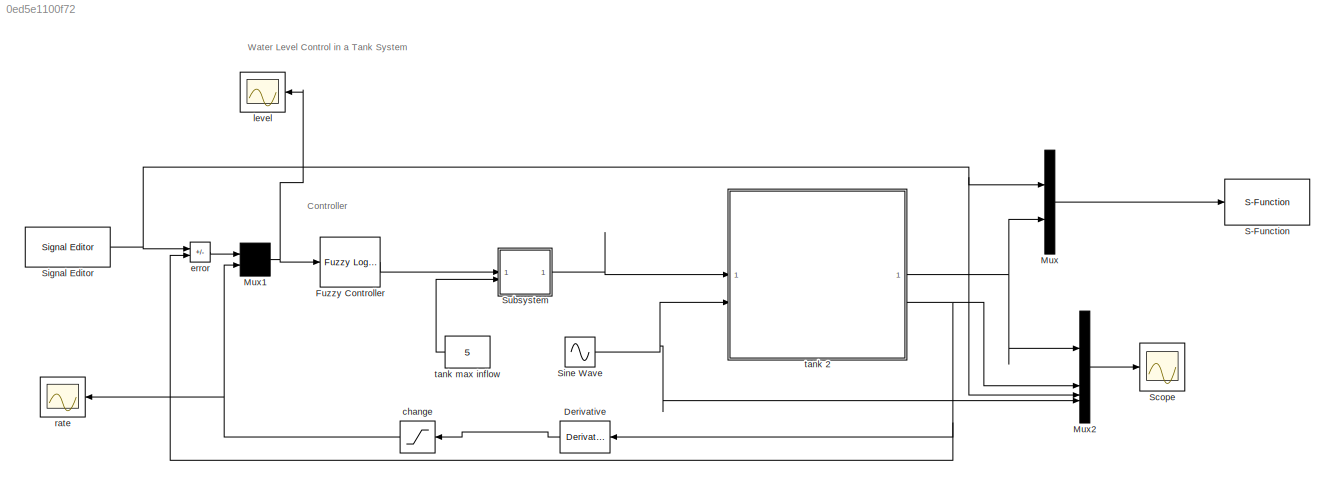
MODEL slx_0ed5e1100f72
KIND model
CONFIG AbsTol = 1e-6
CONFIG EnableMultiTasking = off
CONFIG FixedStep = auto
CONFIG MaxStep = 0.2
CONFIG MinStep = auto
CONFIG PreLoadFcn = tank=readfis('Q');
CONFIG RelTol = 1e-3
CONFIG SampleTimeConstraint = Unconstrained
CONFIG SolverName = ode45
CONFIG StartTime = 0
CONFIG StopTime = 100
BLOCK [Derivative] Derivative
BLOCK [Reference] Fuzzy Controller   REF=fuzblock/Fuzzy Logic   (lib defined in mdl_858b3b3e7478)
Controller 
with Ruleviewer
  SourceBlock = fuzblock/Fuzzy Logic \nController \nwith Ruleviewer
  SourceType = Fuzzy Inference System
BLOCK [Mux] Mux
  DisplayOption = bar
  Inputs = 2
BLOCK [Mux] Mux1
  Inputs = 2
BLOCK [Mux] Mux2
  DisplayOption = bar
BLOCK [S-Function] S-Function
  Commented = on
  EnableBusSupport = off
  FunctionName = animtank_puc
  Parameters = 1
  SFcnIsStateOwnerBlock = off
  SFunctionDeploymentMode = off
BLOCK [Scope] Scope
  ActiveDisplayYMaximum = 2.99994802333179
  ActiveDisplayYMinimum = -1.4222148185755841
  Floating = off
  GraphicalSettings = {"AxesScalingProperties":{"AlignXAxis":"Center","AlignYAxis":"Center","AutoScaleXAxisLimits":false,"AxesScaling":"Manual","AxesScalingNumUpdates":10,"ExpandOnly":true,"ScaleAxesLimitsAtStop":false,"XAxisDataRange":100,"YAxisDataRange":80},"DisplayProperties":{"ColorOrder":["auto","auto","auto","auto","auto","auto","auto","auto","auto","auto","auto","auto","auto","auto","auto","auto","auto","auto",...<+2355ch>
  MultipleDisplayCache = [{"MaxYLimMag":1.675,"MaxYLimReal":2.99994802333179,"MinYLimMag":0,"MinYLimReal":-1.4222148185755841,"PlotAsMagnitudePhase":false,"ShowGrid":true,"ShowLegend":true,"Title":"%<SignalLabel>","YLabel":""}]
  NumInputPorts = 1
  ScopeFrameLocation = window
  ShowLegend = on
  WasSavedAsWebScope = on
  WindowPosition = [900.000000,215.000000,733.000000,586.000000,]
BLOCK [Reference] Signal Editor  REF=SignalEditorBlockLib/Signal Editor
  SourceBlock = SignalEditorBlockLib/Signal Editor
  SourceType = SignalEditor
  UserDataPersistent = on
BLOCK [Sin] Sine Wave
  Amplitude = 0.1
  Bias = 0.2
  Frequency = 0.3
  SampleTime = 0
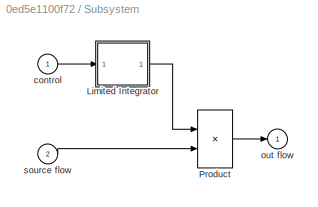
BLOCK [SubSystem] Subsystem
  ShowPortLabels = none
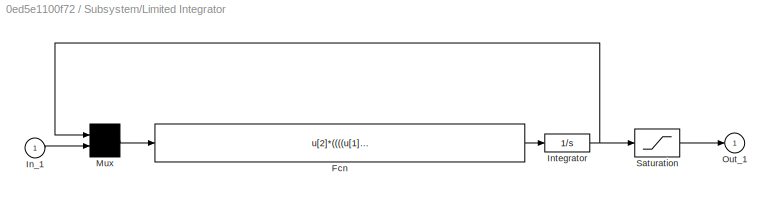
BLOCK [SubSystem] Subsystem/Limited Integrator
  ShowPortLabels = none
BLOCK [Fcn] Subsystem/Limited Integrator/Fcn
  Expr = u[2]*((((u[1]>lb)+(u[2]>=0))>0) * (((u[1]<ub)+(u[2]<=0))>0))
BLOCK [Inport] Subsystem/Limited Integrator/In_1
BLOCK [Integrator] Subsystem/Limited Integrator/Integrator
  InitialCondition = xi
BLOCK [Mux] Subsystem/Limited Integrator/Mux
  Inputs = 2
BLOCK [Outport] Subsystem/Limited Integrator/Out_1
  InitialOutput = 0
BLOCK [Saturate] Subsystem/Limited Integrator/Saturation
  LowerLimit = lb
  UpperLimit = ub
BLOCK [Product] Subsystem/Product
  InputSameDT = on
  OutDataTypeStr = Inherit: Same as first input
  RndMeth = Zero
  SaturateOnIntegerOverflow = on
BLOCK [Inport] Subsystem/control
BLOCK [Outport] Subsystem/out flow
  InitialOutput = 0
BLOCK [Inport] Subsystem/source flow
  Port = 2
BLOCK [Saturate] change
  LowerLimit = -5
  UpperLimit = 5
BLOCK [Sum] error
  IconShape = rectangular
  InputSameDT = on
  Inputs = +-
  OutDataTypeStr = Inherit: Same as first input
  SaturateOnIntegerOverflow = on
BLOCK [Scope] level
  ActiveDisplayYMaximum = 1
  ActiveDisplayYMinimum = -1
  DataLoggingVariableName = ScopeData2
  Floating = off
  GraphicalSettings = {"Style":{"BackgroundColor":[0.12941176470588237,0.12941176470588237,0.12941176470588237],"AxesColor":[0.07058823529411765,0.07058823529411765,0.07058823529411765],"LabelsColor":[0.8509803921568627,0.8509803921568627,0.8509803921568627],"PreserveColors":false,"Visible":[true],"LineStyle":["-"],"LineWidth":[1.5],"BarWidth":[0.9],"LineColor":["auto"],"LineFaceAlpha":[1],"LineEdgeAlpha":[1],"Marker":...<+1890ch>
  MultipleDisplayCache = [{"MaxYLimMag":1,"MaxYLimReal":1,"MinYLimMag":0,"MinYLimReal":-1,"PlotAsMagnitudePhase":false,"ShowGrid":true,"ShowLegend":true,"Title":"%<SignalLabel>","YLabel":""}]
  NameLocation = top
  NumInputPorts = 1
  ScopeFrameLocation = window
  ShowLegend = on
  WasSavedAsWebScope = on
  WindowPosition = [618.000000,279.000000,783.000000,493.000000,]
BLOCK [Scope] rate
  ActiveDisplayYMaximum = 1
  ActiveDisplayYMinimum = -1
  DataLoggingVariableName = ScopeData1
  Floating = off
  GraphicalSettings = {"Style":{"BackgroundColor":[0.12941176470588237,0.12941176470588237,0.12941176470588237],"AxesColor":[0.07058823529411765,0.07058823529411765,0.07058823529411765],"LabelsColor":[0.8509803921568627,0.8509803921568627,0.8509803921568627],"PreserveColors":false,"Visible":[true],"LineStyle":["-"],"LineWidth":[1.5],"BarWidth":[0.9],"LineColor":["auto"],"LineFaceAlpha":[1],"LineEdgeAlpha":[1],"Marker":...<+1890ch>
  MultipleDisplayCache = [{"MaxYLimMag":1,"MaxYLimReal":1,"MinYLimMag":0,"MinYLimReal":-1,"PlotAsMagnitudePhase":false,"ShowGrid":true,"ShowLegend":true,"Title":"%<SignalLabel>","YLabel":""}]
  NameLocation = top
  NumInputPorts = 1
  ScopeFrameLocation = window
  ShowLegend = on
  WasSavedAsWebScope = on
  WindowPosition = [618.000000,279.000000,783.000000,493.000000,]
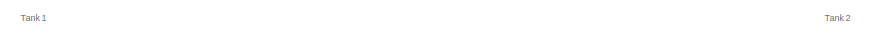
[diagram: tank 2 - part 1/3, top center region]
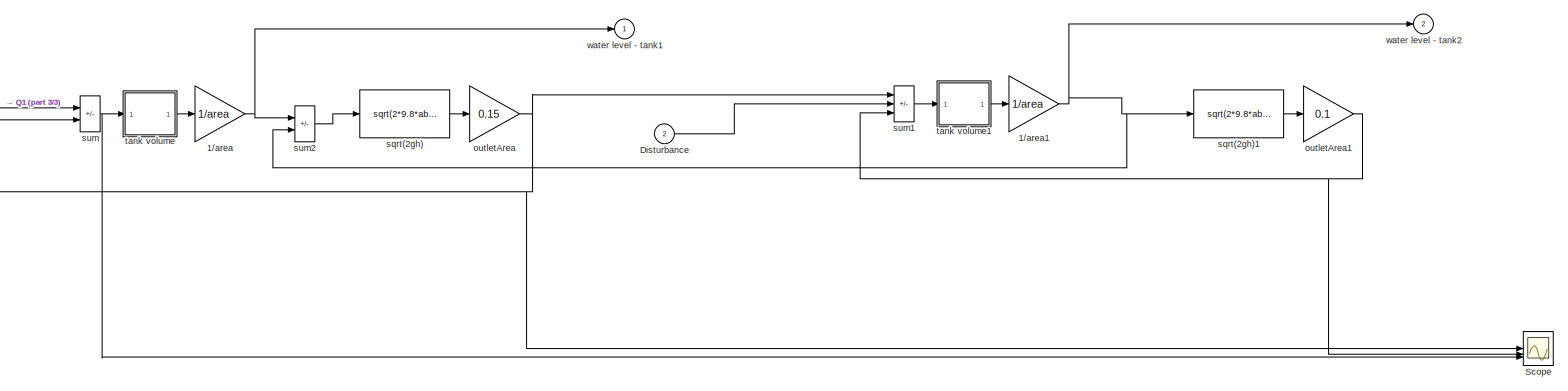
[diagram: tank 2 - part 2/3, full width, middle band]
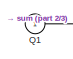
[diagram: tank 2 - part 3/3, middle left region]
BLOCK [SubSystem] tank 2
  ShowPortLabels = none
BLOCK [Gain] tank 2/1//area
  Gain = 1/area
  OutDataTypeStr = Inherit: Same as input
  ParamDataTypeStr = Inherit: Same as input
  SaturateOnIntegerOverflow = on
BLOCK [Gain] tank 2/1//area1
  Gain = 1/area
  OutDataTypeStr = Inherit: Same as input
  ParamDataTypeStr = Inherit: Same as input
  SaturateOnIntegerOverflow = on
BLOCK [Inport] tank 2/Disturbance
  Port = 2
BLOCK [Inport] tank 2/Q1 
BLOCK [Scope] tank 2/Scope
  ActiveDisplayYMaximum = 5.283857744529727
  ActiveDisplayYMinimum = -0.60313096852252457
  DataLoggingVariableName = ScopeData1
  Floating = off
  GraphicalSettings = {"AxesScalingProperties":{"AlignXAxis":"Center","AlignYAxis":"Center","AutoScaleXAxisLimits":false,"AxesScaling":"Manual","AxesScalingNumUpdates":10,"ExpandOnly":true,"ScaleAxesLimitsAtStop":false,"XAxisDataRange":100,"YAxisDataRange":80},"DisplayProperties":{"ColorOrder":["auto","auto","auto","auto","auto","auto","auto","auto","auto","auto","auto","auto","auto","auto","auto","auto","auto","auto",...<+2178ch>
  MultipleDisplayCache = [{"MaxYLimMag":5.2896105022297792,"MaxYLimReal":5.283857744529727,"MinYLimMag":0,"MinYLimReal":-0.60313096852252457,"PlotAsMagnitudePhase":false,"ShowGrid":true,"ShowLegend":true,"Title":"%<SignalLabel>","YLabel":""}]
  NumInputPorts = 3
  ScopeFrameLocation = window
  ShowLegend = on
  WasSavedAsWebScope = on
  WindowPosition = [1118.000000,116.000000,641.000000,648.000000,]
BLOCK [Gain] tank 2/outletArea
  Gain = 0.15
  OutDataTypeStr = Inherit: Same as input
  ParamDataTypeStr = Inherit: Same as input
  SaturateOnIntegerOverflow = on
BLOCK [Gain] tank 2/outletArea1
  Gain = 0.1
  OutDataTypeStr = Inherit: Same as input
  ParamDataTypeStr = Inherit: Same as input
  SaturateOnIntegerOverflow = on
BLOCK [Fcn] tank 2/sqrt(2gh)
  Expr = sqrt(2*9.8*abs(u))
BLOCK [Fcn] tank 2/sqrt(2gh)1
  Expr = sqrt(2*9.8*abs(u))
BLOCK [Sum] tank 2/sum
  IconShape = rectangular
  InputSameDT = on
  Inputs = +-
  OutDataTypeStr = Inherit: Same as first input
  SaturateOnIntegerOverflow = on
BLOCK [Sum] tank 2/sum1
  IconShape = rectangular
  InputSameDT = on
  Inputs = ++-
  OutDataTypeStr = Inherit: Same as first input
  SaturateOnIntegerOverflow = on
BLOCK [Sum] tank 2/sum2
  IconShape = rectangular
  InputSameDT = on
  Inputs = +-
  OutDataTypeStr = Inherit: Same as first input
  SaturateOnIntegerOverflow = on
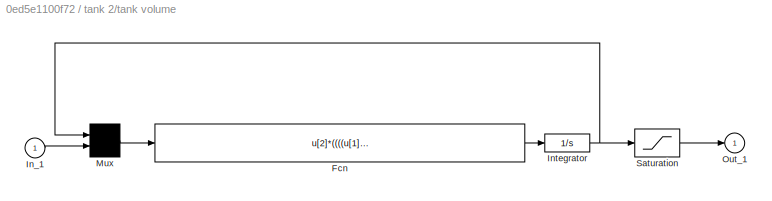
BLOCK [SubSystem] tank 2/tank volume
  ShowPortLabels = none
BLOCK [Fcn] tank 2/tank volume/Fcn
  Expr = u[2]*((((u[1]>lb)+(u[2]>=0))>0) * (((u[1]<ub)+(u[2]<=0))>0))
BLOCK [Inport] tank 2/tank volume/In_1
BLOCK [Integrator] tank 2/tank volume/Integrator
  InitialCondition = xi
BLOCK [Mux] tank 2/tank volume/Mux
  Inputs = 2
BLOCK [Outport] tank 2/tank volume/Out_1
  InitialOutput = 0
BLOCK [Saturate] tank 2/tank volume/Saturation
  LowerLimit = lb
  UpperLimit = ub
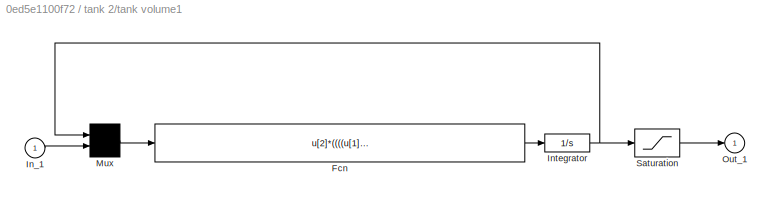
BLOCK [SubSystem] tank 2/tank volume1
  ShowPortLabels = none
BLOCK [Fcn] tank 2/tank volume1/Fcn
  Expr = u[2]*((((u[1]>lb)+(u[2]>=0))>0) * (((u[1]<ub)+(u[2]<=0))>0))
BLOCK [Inport] tank 2/tank volume1/In_1
BLOCK [Integrator] tank 2/tank volume1/Integrator
  InitialCondition = xi
BLOCK [Mux] tank 2/tank volume1/Mux
  Inputs = 2
BLOCK [Outport] tank 2/tank volume1/Out_1
  InitialOutput = 0
BLOCK [Saturate] tank 2/tank volume1/Saturation
  LowerLimit = lb
  UpperLimit = ub
BLOCK [Outport] tank 2/water level - tank1 
  InitialOutput = 0
BLOCK [Outport] tank 2/water level - tank2 
  InitialOutput = 0
  Port = 2
BLOCK [Constant] tank max inflow
  Value = 5
ANNOTATION (root): Water Level Control in a Tank System
ANNOTATION (root): Controller
ANNOTATION tank 2: Tank 1
ANNOTATION tank 2: Tank 2
LINE Derivative:1 -> change:1
LINE Fuzzy Controller :1 -> Subsystem:1
NET Mux1:1 -> Fuzzy Controller :1, level:1
LINE Mux2:1 -> Scope:1
LINE Mux:1 -> S-Function:1
NET Signal Editor:1 -> Mux2:3, Mux:1, error:1
NET Sine Wave:1 -> Mux2:4, tank 2:2
LINE Subsystem/Limited Integrator/Fcn:1 -> Subsystem/Limited Integrator/Integrator:1
LINE Subsystem/Limited Integrator/In_1:1 -> Subsystem/Limited Integrator/Mux:2
NET Subsystem/Limited Integrator/Integrator:1 -> Subsystem/Limited Integrator/Mux:1, Subsystem/Limited Integrator/Saturation:1
LINE Subsystem/Limited Integrator/Mux:1 -> Subsystem/Limited Integrator/Fcn:1
LINE Subsystem/Limited Integrator/Saturation:1 -> Subsystem/Limited Integrator/Out_1:1
LINE Subsystem/Limited Integrator:1 -> Subsystem/Product:1
LINE Subsystem/Product:1 -> Subsystem/out flow:1
LINE Subsystem/control:1 -> Subsystem/Limited Integrator:1
LINE Subsystem/source flow:1 -> Subsystem/Product:2
LINE Subsystem:1 -> tank 2:1
NET change:1 -> Mux1:2, rate:1
LINE error:1 -> Mux1:1
NET tank 2/1//area1:1 -> tank 2/sqrt(2gh)1:1, tank 2/sum2:2, tank 2/water level - tank2 :1
NET tank 2/1//area:1 -> tank 2/sum2:1, tank 2/water level - tank1 :1
LINE tank 2/Disturbance:1 -> tank 2/sum1:2
LINE tank 2/Q1 :1 -> tank 2/sum:1
NET tank 2/outletArea1:1 -> tank 2/Scope:2, tank 2/sum1:3
NET tank 2/outletArea:1 -> tank 2/Scope:1, tank 2/sum1:1, tank 2/sum:2
LINE tank 2/sqrt(2gh)1:1 -> tank 2/outletArea1:1
LINE tank 2/sqrt(2gh):1 -> tank 2/outletArea:1
LINE tank 2/sum1:1 -> tank 2/tank volume1:1
LINE tank 2/sum2:1 -> tank 2/sqrt(2gh):1
NET tank 2/sum:1 -> tank 2/Scope:3, tank 2/tank volume:1
LINE tank 2/tank volume/Fcn:1 -> tank 2/tank volume/Integrator:1
LINE tank 2/tank volume/In_1:1 -> tank 2/tank volume/Mux:2
NET tank 2/tank volume/Integrator:1 -> tank 2/tank volume/Mux:1, tank 2/tank volume/Saturation:1
LINE tank 2/tank volume/Mux:1 -> tank 2/tank volume/Fcn:1
LINE tank 2/tank volume/Saturation:1 -> tank 2/tank volume/Out_1:1
LINE tank 2/tank volume1/Fcn:1 -> tank 2/tank volume1/Integrator:1
LINE tank 2/tank volume1/In_1:1 -> tank 2/tank volume1/Mux:2
NET tank 2/tank volume1/Integrator:1 -> tank 2/tank volume1/Mux:1, tank 2/tank volume1/Saturation:1
LINE tank 2/tank volume1/Mux:1 -> tank 2/tank volume1/Fcn:1
LINE tank 2/tank volume1/Saturation:1 -> tank 2/tank volume1/Out_1:1
LINE tank 2/tank volume1:1 -> tank 2/1//area1:1
LINE tank 2/tank volume:1 -> tank 2/1//area:1
NET tank 2:1 -> Mux2:1, Mux:2
NET tank 2:2 -> Derivative:1, Mux2:2, error:2
LINE tank max inflow:1 -> Subsystem:2
note: NET lines group one-source signal fan-out (src -> all destinations, sorted); 1:1 wires keep LINE
